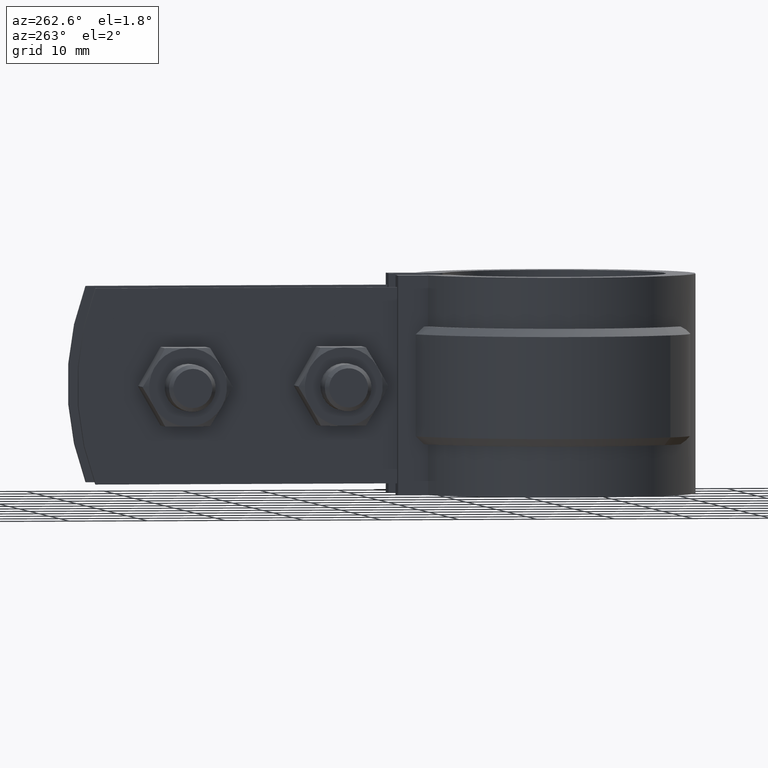
[diagram: clean part render]
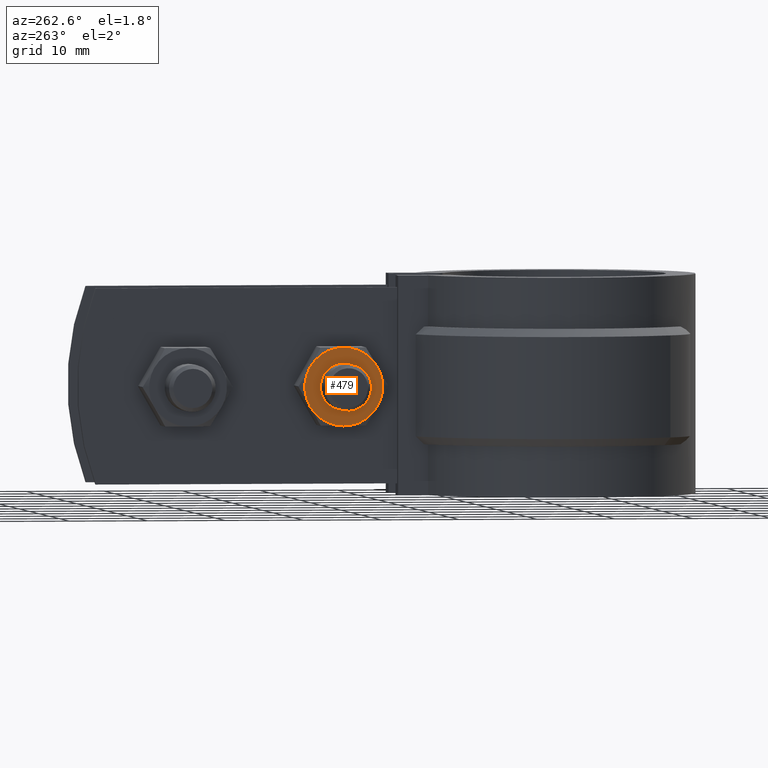
[diagram: same view with one face highlighted and labeled with its STEP entity id]
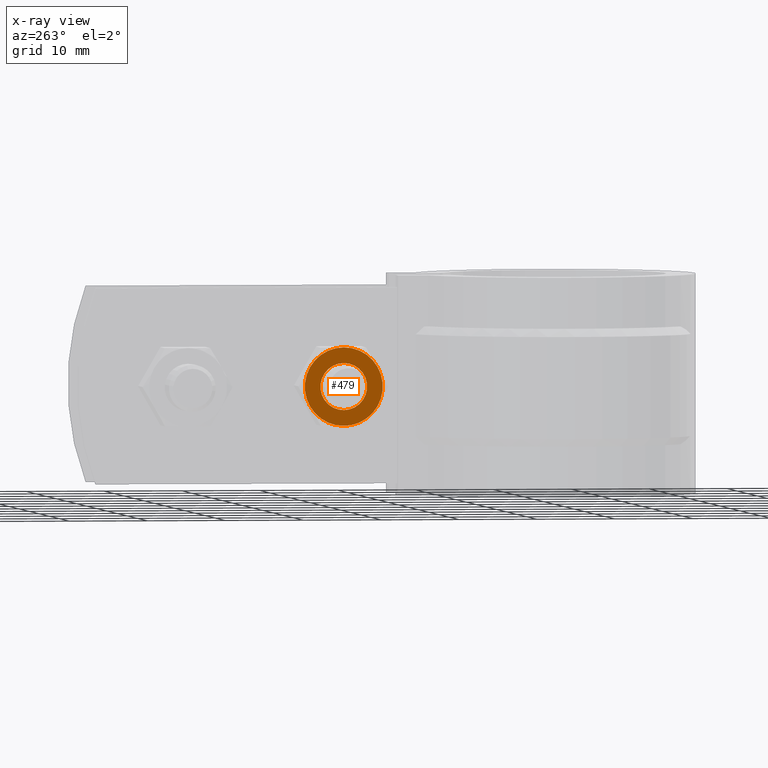
[diagram: x-ray of the same camera — body ghosted, the highlighted face saturated]
A machine part, auxiliary view. The second image highlights one B-rep face of the part: STEP entity #479.
The next image is the same camera in x-ray: the body ghosted, the highlighted face saturated — about 0% of this face is hidden behind the body in this view.
In plain terms, the highlighted planar face has unit normal (1, 0, 0).
Its self-contained STEP definition (entity closure, byte-faithful):
#479 = ADVANCED_FACE( '', ( #855, #856 ), #857, .F. );
#855 = FACE_OUTER_BOUND( '', #1697, .T. );
#856 = FACE_BOUND( '', #1698, .T. );
#857 = PLANE( '', #1699 );
#1697 = EDGE_LOOP( '', ( #4146, #4147, #4148, #4149, #4150, #4151 ) );
#1698 = EDGE_LOOP( '', ( #4152 ) );
#1699 = AXIS2_PLACEMENT_3D( '', #4153, #4154, #4155 );
#4146 = ORIENTED_EDGE( '', *, *, #4756, .F. );
#4147 = ORIENTED_EDGE( '', *, *, #4757, .F. );
#4148 = ORIENTED_EDGE( '', *, *, #4758, .F. );
#4149 = ORIENTED_EDGE( '', *, *, #4759, .F. );
#4150 = ORIENTED_EDGE( '', *, *, #4754, .F. );
#4151 = ORIENTED_EDGE( '', *, *, #4760, .F. );
#4152 = ORIENTED_EDGE( '', *, *, #4761, .T. );
#4153 = CARTESIAN_POINT( '', ( -10.1000000000000, 28.3219465658192, -12.5000000000000 ) );
#4154 = DIRECTION( '', ( 1.00000000000000, 0.000000000000000, 0.000000000000000 ) );
#4155 = DIRECTION( '', ( 0.000000000000000, 0.000000000000000, -1.00000000000000 ) );
#4754 = EDGE_CURVE( '', #5543, #5545, #5546, .T. );
#4756 = EDGE_CURVE( '', #5548, #5549, #5550, .T. );
#4757 = EDGE_CURVE( '', #5551, #5548, #5552, .T. );
#4758 = EDGE_CURVE( '', #5553, #5551, #5554, .T. );
#4759 = EDGE_CURVE( '', #5545, #5553, #5555, .T. );
#4760 = EDGE_CURVE( '', #5549, #5543, #5556, .T. );
#4761 = EDGE_CURVE( '', #5557, #5557, #5558, .T. );
#5543 = VERTEX_POINT( '', #8001 );
#5545 = VERTEX_POINT( '', #8008 );
#5546 = CIRCLE( '', #8009, 5.00000000000000 );
#5548 = VERTEX_POINT( '', #8018 );
#5549 = VERTEX_POINT( '', #8019 );
#5550 = CIRCLE( '', #8020, 5.00000000000000 );
#5551 = VERTEX_POINT( '', #8021 );
#5552 = CIRCLE( '', #8022, 5.00000000000000 );
#5553 = VERTEX_POINT( '', #8023 );
#5554 = CIRCLE( '', #8024, 5.00000000000000 );
#5555 = CIRCLE( '', #8025, 5.00000000000000 );
#5556 = CIRCLE( '', #8026, 5.00000000000000 );
#5557 = VERTEX_POINT( '', #8027 );
#5558 = CIRCLE( '', #8028, 3.00000000000000 );
#8001 = CARTESIAN_POINT( '', ( -10.1000000000000, 28.3219465658192, -7.50000000000000 ) );
#8008 = CARTESIAN_POINT( '', ( -10.1000000000000, 23.9918195468970, -10.0000000000000 ) );
#8009 = AXIS2_PLACEMENT_3D( '', #8721, #8722, #8723 );
#8018 = CARTESIAN_POINT( '', ( -10.1000000000000, 32.6520735847414, -15.0000000000000 ) );
#8019 = CARTESIAN_POINT( '', ( -10.1000000000000, 32.6520735847414, -10.0000000000000 ) );
#8020 = AXIS2_PLACEMENT_3D( '', #8724, #8725, #8726 );
#8021 = CARTESIAN_POINT( '', ( -10.1000000000000, 28.3219465658192, -17.5000000000000 ) );
#8022 = AXIS2_PLACEMENT_3D( '', #8727, #8728, #8729 );
#8023 = CARTESIAN_POINT( '', ( -10.1000000000000, 23.9918195468970, -15.0000000000000 ) );
#8024 = AXIS2_PLACEMENT_3D( '', #8730, #8731, #8732 );
#8025 = AXIS2_PLACEMENT_3D( '', #8733, #8734, #8735 );
#8026 = AXIS2_PLACEMENT_3D( '', #8736, #8737, #8738 );
#8027 = CARTESIAN_POINT( '', ( -10.1000000000000, 28.3219465658192, -15.5000000000000 ) );
#8028 = AXIS2_PLACEMENT_3D( '', #8739, #8740, #8741 );
#8721 = CARTESIAN_POINT( '', ( -10.1000000000000, 28.3219465658192, -12.5000000000000 ) );
#8722 = DIRECTION( '', ( 1.00000000000000, 0.000000000000000, 0.000000000000000 ) );
#8723 = DIRECTION( '', ( 0.000000000000000, 0.000000000000000, -1.00000000000000 ) );
#8724 = CARTESIAN_POINT( '', ( -10.1000000000000, 28.3219465658192, -12.5000000000000 ) );
#8725 = DIRECTION( '', ( 1.00000000000000, 0.000000000000000, 0.000000000000000 ) );
#8726 = DIRECTION( '', ( 0.000000000000000, 0.000000000000000, -1.00000000000000 ) );
#8727 = CARTESIAN_POINT( '', ( -10.1000000000000, 28.3219465658192, -12.5000000000000 ) );
#8728 = DIRECTION( '', ( 1.00000000000000, 0.000000000000000, 0.000000000000000 ) );
#8729 = DIRECTION( '', ( 0.000000000000000, 0.000000000000000, -1.00000000000000 ) );
#8730 = CARTESIAN_POINT( '', ( -10.1000000000000, 28.3219465658192, -12.5000000000000 ) );
#8731 = DIRECTION( '', ( 1.00000000000000, 0.000000000000000, 0.000000000000000 ) );
#8732 = DIRECTION( '', ( 0.000000000000000, 0.000000000000000, -1.00000000000000 ) );
#8733 = CARTESIAN_POINT( '', ( -10.1000000000000, 28.3219465658192, -12.5000000000000 ) );
#8734 = DIRECTION( '', ( 1.00000000000000, 0.000000000000000, 0.000000000000000 ) );
#8735 = DIRECTION( '', ( 0.000000000000000, 0.000000000000000, -1.00000000000000 ) );
#8736 = CARTESIAN_POINT( '', ( -10.1000000000000, 28.3219465658192, -12.5000000000000 ) );
#8737 = DIRECTION( '', ( 1.00000000000000, 0.000000000000000, 0.000000000000000 ) );
#8738 = DIRECTION( '', ( 0.000000000000000, 0.000000000000000, -1.00000000000000 ) );
#8739 = CARTESIAN_POINT( '', ( -10.1000000000000, 28.3219465658192, -12.5000000000000 ) );
#8740 = DIRECTION( '', ( 1.00000000000000, 0.000000000000000, 0.000000000000000 ) );
#8741 = DIRECTION( '', ( 0.000000000000000, 0.000000000000000, -1.00000000000000 ) );